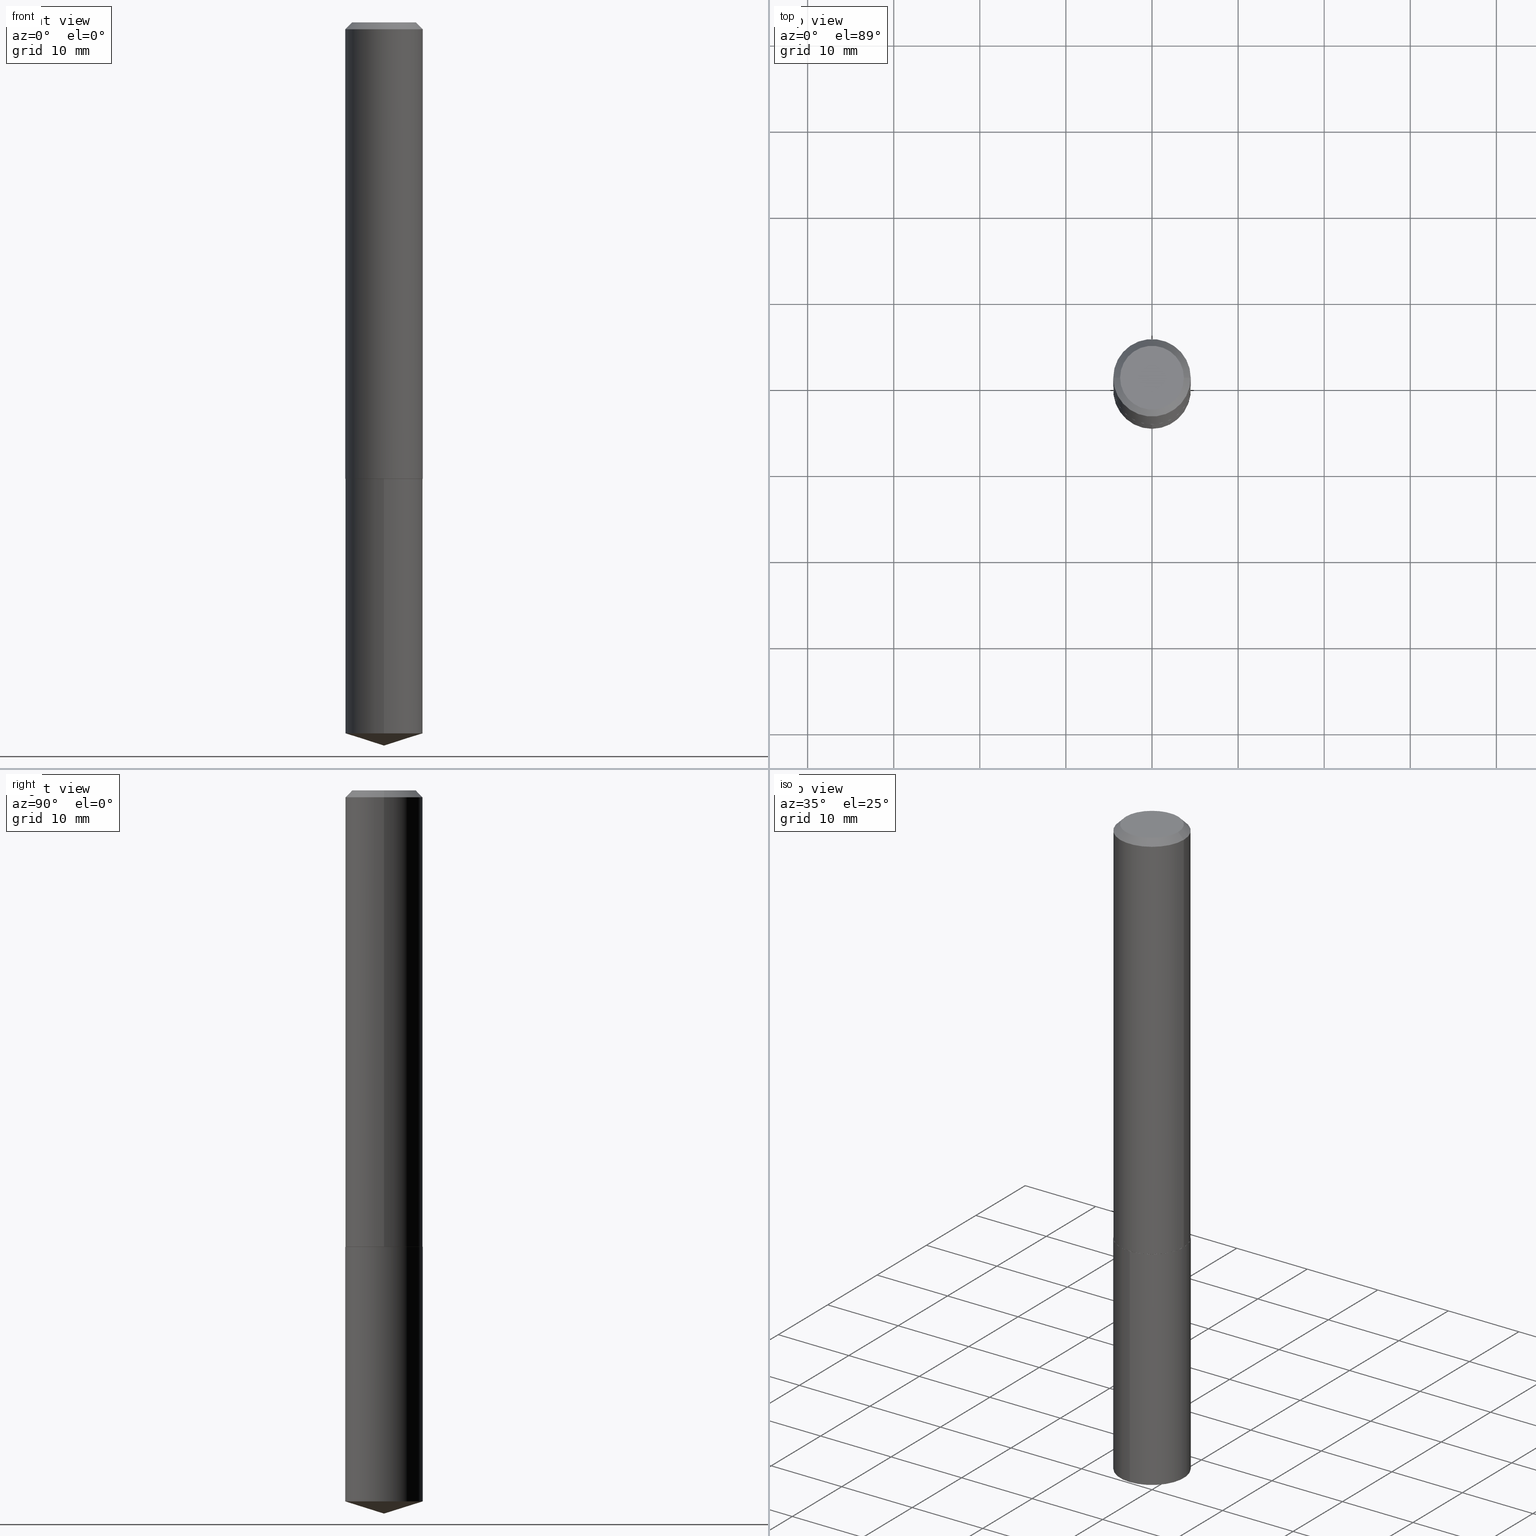
[diagram: canonical four-view strip — front | top / right | iso, engineering-drawing reading convention]
A machine part, canonical four-view strip (front | top / right | iso — engineering-drawing reading convention). The complete STEP part file that produces these views, byte-faithful:
ISO-10303-21;
HEADER;
FILE_DESCRIPTION (( 'STEP AP203' ),
    '1' );
FILE_NAME ('62151.STEP',
    '2024-04-23T06:48:32',
    ( '' ),
    ( '' ),
    'SwSTEP 2.0',
    'SolidWorks 2023',
    '' );
FILE_SCHEMA (( 'CONFIG_CONTROL_DESIGN' ));
ENDSEC;

DATA;
#1 = DIRECTION ( 'NONE',  ( 2.438088387897960049E-29, -3.491481338843145188E-15, -1.000000000000000000 ) ) ;
#2 = ORIENTED_EDGE ( 'NONE', *, *, #185, .T. ) ;
#3 = ADVANCED_FACE ( 'NONE', ( #334 ), #212, .T. ) ;
#4 = DIRECTION ( 'NONE',  ( -2.445468806185136597E-29, 3.491481338843145583E-15, 1.000000000000000000 ) ) ;
#5 = VECTOR ( 'NONE', #210, 39.37007874015748854 ) ;
#6 = PRODUCT_DEFINITION_SHAPE ( 'NONE', 'NONE',  #368 ) ;
#7 = CYLINDRICAL_SURFACE ( 'NONE', #348, 0.1771500000000000019 ) ;
#8 = DIRECTION ( 'NONE',  ( -6.982962677686265922E-15, -1.000000000000000000, 3.084220145260246224E-15 ) ) ;
#9 = LINE ( 'NONE', #312, #281 ) ;
#10 = AXIS2_PLACEMENT_3D ( 'NONE', #277, #369, #184 ) ;
#11 = CARTESIAN_POINT ( 'NONE',  ( 1.258726456399068374E-15, 0.1771499999999927299, -2.086600000000001121 ) ) ;
#12 = ORIENTED_EDGE ( 'NONE', *, *, #304, .T. ) ;
#13 = ORIENTED_EDGE ( 'NONE', *, *, #295, .F. ) ;
#14 = LINE ( 'NONE', #128, #127 ) ;
#15 = AXIS2_PLACEMENT_3D ( 'NONE', #148, #151, #275 ) ;
#16 = ORIENTED_EDGE ( 'NONE', *, *, #316, .F. ) ;
#17 = APPROVAL ( #200, 'UNSPECIFIED' ) ;
#18 = DIRECTION ( 'NONE',  ( 1.000000000000000000, -6.982962677686266711E-15, 0.000000000000000000 ) ) ;
#19 = DIRECTION ( 'NONE',  ( -2.445468806185136597E-29, 3.491481338843145583E-15, 1.000000000000000000 ) ) ;
#20 = EDGE_LOOP ( 'NONE', ( #158, #99, #156, #253 ) ) ;
#21 = DATE_AND_TIME ( #26, #86 ) ;
#22 = AXIS2_PLACEMENT_3D ( 'NONE', #49, #98, #292 ) ;
#23 = FACE_OUTER_BOUND ( 'NONE', #93, .T. ) ;
#24 = EDGE_CURVE ( 'NONE', #387, #286, #198, .T. ) ;
#25 = MANIFOLD_SOLID_BREP ( 'Body-Move/Copy2[1]', #203 ) ;
#26 = CALENDAR_DATE ( 2024, 23, 4 ) ;
#27 = CARTESIAN_POINT ( 'NONE',  ( -2.949913012720688878E-47, 4.211693974208522336E-33, 1.206277097160143859E-18 ) ) ;
#28 = ORIENTED_EDGE ( 'NONE', *, *, #182, .T. ) ;
#29 = COORDINATED_UNIVERSAL_TIME_OFFSET ( 5, 0, .BEHIND. ) ;
#30 = DIRECTION ( 'NONE',  ( 2.445468806185136597E-29, -3.491481338843145583E-15, -1.000000000000000000 ) ) ;
#31 = ORIENTED_EDGE ( 'NONE', *, *, #244, .T. ) ;
#32 = CARTESIAN_POINT ( 'NONE',  ( 5.102715210985907397E-29, -7.285324961630108994E-15, -2.086600000000000676 ) ) ;
#33 = DIRECTION ( 'NONE',  ( -2.444942858903587164E-29, 3.492234525285384557E-15, 1.000000000000000000 ) ) ;
#34 = EDGE_CURVE ( 'NONE', #194, #387, #382, .T. ) ;
#35 = AXIS2_PLACEMENT_3D ( 'NONE', #359, #360, #269 ) ;
#36 = DIRECTION ( 'NONE',  ( -2.445468806185136597E-29, 3.491481338843145583E-15, 1.000000000000000000 ) ) ;
#37 = CARTESIAN_POINT ( 'NONE',  ( 0.1766500000000002790, -8.518865318643389958E-15, -2.086600000000000232 ) ) ;
#38 = CARTESIAN_POINT ( 'NONE',  ( 0.000000000000000000, 0.000000000000000000, 0.000000000000000000 ) ) ;
#39 = VECTOR ( 'NONE', #337, 39.37007874015748854 ) ;
#40 = CARTESIAN_POINT ( 'NONE',  ( 0.000000000000000000, 0.000000000000000000, 0.000000000000000000 ) ) ;
#41 = ORIENTED_EDGE ( 'NONE', *, *, #185, .F. ) ;
#42 = MECHANICAL_CONTEXT ( 'NONE', #162, 'mechanical' ) ;
#43 = CARTESIAN_POINT ( 'NONE',  ( 5.102715210985907397E-29, -7.285324961630108994E-15, -2.086600000000000676 ) ) ;
#44 = ORIENTED_EDGE ( 'NONE', *, *, #45, .F. ) ;
#45 = EDGE_CURVE ( 'NONE', #165, #354, #181, .T. ) ;
#46 = CC_DESIGN_SECURITY_CLASSIFICATION ( #161, ( #279 ) ) ;
#47 = FACE_OUTER_BOUND ( 'NONE', #222, .T. ) ;
#48 = ORIENTED_EDGE ( 'NONE', *, *, #211, .F. ) ;
#49 = CARTESIAN_POINT ( 'NONE',  ( 7.950205245703951750E-29, -1.135253781015769415E-14, -3.251244819550088483 ) ) ;
#50 = ORIENTED_EDGE ( 'NONE', *, *, #34, .T. ) ;
#51 = ADVANCED_FACE ( 'NONE', ( #56 ), #202, .T. ) ;
#52 = APPROVAL_DATE_TIME ( #325, #17 ) ;
#53 = EDGE_LOOP ( 'NONE', ( #110, #381, #144, #196 ) ) ;
#54 = CIRCLE ( 'NONE', #10, 0.1771500000000000019 ) ;
#55 = SECURITY_CLASSIFICATION_LEVEL ( 'unclassified' ) ;
#56 = FACE_OUTER_BOUND ( 'NONE', #53, .T. ) ;
#57 = VERTEX_POINT ( 'NONE', #208 ) ;
#58 = PLANE ( 'NONE',  #72 ) ;
#59 = PRODUCT_RELATED_PRODUCT_CATEGORY ( 'detail', '', ( #266 ) ) ;
#60 = APPROVAL_STATUS ( 'not_yet_approved' ) ;
#61 = DIRECTION ( 'NONE',  ( -2.445468806185136597E-29, 3.491481338843145583E-15, 1.000000000000000000 ) ) ;
#62 = CIRCLE ( 'NONE', #168, 0.1766500000000002790 ) ;
#63 = DIRECTION ( 'NONE',  ( -2.445468806185136597E-29, 3.491481338843145583E-15, 1.000000000000000000 ) ) ;
#64 = CARTESIAN_POINT ( 'NONE',  ( 5.101492476582815716E-29, -7.283579220960688279E-15, -2.086100000000000954 ) ) ;
#65 = DIRECTION ( 'NONE',  ( -2.445468806185136597E-29, 3.491481338843145583E-15, 1.000000000000000000 ) ) ;
#66 = CC_DESIGN_APPROVAL ( #249, ( #279 ) ) ;
#67 = CARTESIAN_POINT ( 'NONE',  ( 1.258726456399096773E-15, 0.1771499999999885666, -3.251244819550088927 ) ) ;
#68 = DIRECTION ( 'NONE',  ( -2.445468806185136877E-29, 3.491481338843145188E-15, 1.000000000000000000 ) ) ;
#69 = CC_DESIGN_PERSON_AND_ORGANIZATION_ASSIGNMENT ( #197, #104, ( #368 ) ) ;
#70 = DIRECTION ( 'NONE',  ( -2.444942858903587164E-29, 3.492234525285384557E-15, 1.000000000000000000 ) ) ;
#71 = CIRCLE ( 'NONE', #296, 0.1771500000000000019 ) ;
#72 = AXIS2_PLACEMENT_3D ( 'NONE', #111, #1, #240 ) ;
#73 = ADVANCED_FACE ( 'NONE', ( #332 ), #58, .F. ) ;
#74 = ORIENTED_EDGE ( 'NONE', *, *, #287, .F. ) ;
#75 = ORIENTED_EDGE ( 'NONE', *, *, #45, .T. ) ;
#76 = AXIS2_PLACEMENT_3D ( 'NONE', #241, #236, #172 ) ;
#77 = ORIENTED_EDGE ( 'NONE', *, *, #24, .T. ) ;
#78 = ORIENTED_EDGE ( 'NONE', *, *, #267, .T. ) ;
#79 = DIRECTION ( 'NONE',  ( 1.000000000000000000, -6.982962677686263555E-15, 0.000000000000000000 ) ) ;
#80 = COORDINATED_UNIVERSAL_TIME_OFFSET ( 5, 0, .BEHIND. ) ;
#81 = CIRCLE ( 'NONE', #135, 0.1771500000000002240 ) ;
#82 = DIRECTION ( 'NONE',  ( -6.982962677686266711E-15, -1.000000000000000000, 3.500519750498737170E-15 ) ) ;
#83 = CARTESIAN_POINT ( 'NONE',  ( 7.642090019328603538E-31, -1.091087918388490390E-16, -0.03125000000000021511 ) ) ;
#84 = EDGE_CURVE ( 'NONE', #259, #354, #263, .T. ) ;
#85 = DIRECTION ( 'NONE',  ( -0.7071067811867647324, 7.493145998871139866E-15, 0.7071067811863303021 ) ) ;
#86 = LOCAL_TIME ( 2, 48, 32.00000000000000000, #108 ) ;
#87 = CARTESIAN_POINT ( 'NONE',  ( 5.102715210985907397E-29, -7.285324961630108994E-15, -2.086600000000000232 ) ) ;
#88 = VECTOR ( 'NONE', #89, 39.37007874015748143 ) ;
#89 = DIRECTION ( 'NONE',  ( -2.444942858903587164E-29, 3.492234525285384162E-15, 1.000000000000000000 ) ) ;
#90 = DIRECTION ( 'NONE',  ( 1.000000000000000000, -6.982962677686269866E-15, 0.000000000000000000 ) ) ;
#91 = CYLINDRICAL_SURFACE ( 'NONE', #310, 0.1771500000000001129 ) ;
#92 = CARTESIAN_POINT ( 'NONE',  ( -0.1771500000000002240, -6.024852764561670589E-15, -2.086100000000000954 ) ) ;
#93 = EDGE_LOOP ( 'NONE', ( #327, #206 ) ) ;
#94 = CLOSED_SHELL ( 'NONE', ( #51, #255, #342, #171, #346, #132, #356, #73 ) ) ;
#95 = EDGE_CURVE ( 'NONE', #57, #317, #113, .T. ) ;
#96 = CARTESIAN_POINT ( 'NONE',  ( -0.1771500000000000019, 1.127923046513273096E-15, -0.03125000000000021511 ) ) ;
#97 = ORIENTED_EDGE ( 'NONE', *, *, #211, .T. ) ;
#98 = DIRECTION ( 'NONE',  ( -2.444942858903587164E-29, 3.492234525285384557E-15, 1.000000000000000000 ) ) ;
#99 = ORIENTED_EDGE ( 'NONE', *, *, #295, .T. ) ;
#100 = LOCAL_TIME ( 2, 48, 32.00000000000000000, #80 ) ;
#101 = CONICAL_SURFACE ( 'NONE', #336, 0.1771500000000000019, 0.7853981633974450594 ) ;
#102 = ORIENTED_EDGE ( 'NONE', *, *, #244, .F. ) ;
#103 = ADVANCED_FACE ( 'NONE', ( #23 ), #137, .F. ) ;
#104 = PERSON_AND_ORGANIZATION_ROLE ( 'creator' ) ;
#105 = EDGE_LOOP ( 'NONE', ( #299, #31, #379 ) ) ;
#106 = PERSON_AND_ORGANIZATION_ROLE ( 'classification_officer' ) ;
#107 = CARTESIAN_POINT ( 'NONE',  ( 5.101492476582815716E-29, -7.283579220960688279E-15, -2.086100000000000954 ) ) ;
#108 = COORDINATED_UNIVERSAL_TIME_OFFSET ( 5, 0, .BEHIND. ) ;
#109 = ORIENTED_EDGE ( 'NONE', *, *, #215, .T. ) ;
#110 = ORIENTED_EDGE ( 'NONE', *, *, #95, .F. ) ;
#111 = CARTESIAN_POINT ( 'NONE',  ( -1.474956506360344439E-47, 2.105846987104261168E-33, 6.031385485800719294E-19 ) ) ;
#112 = EDGE_CURVE ( 'NONE', #190, #286, #81, .T. ) ;
#113 = CIRCLE ( 'NONE', #126, 0.1459000000000000019 ) ;
#114 = PLANE ( 'NONE',  #328 ) ;
#115 = DIRECTION ( 'NONE',  ( 1.000000000000000000, -6.982962677686265922E-15, 4.876176775795935793E-29 ) ) ;
#116 = FACE_OUTER_BOUND ( 'NONE', #130, .T. ) ;
#117 = CYLINDRICAL_SURFACE ( 'NONE', #376, 0.1771500000000001129 ) ;
#118 = LOCAL_TIME ( 2, 48, 32.00000000000000000, #29 ) ;
#119 = AXIS2_PLACEMENT_3D ( 'NONE', #378, #164, #285 ) ;
#120 = DIRECTION ( 'NONE',  ( -2.438088387897960049E-29, 3.491481338843145188E-15, 1.000000000000000000 ) ) ;
#121 = UNCERTAINTY_MEASURE_WITH_UNIT (LENGTH_MEASURE( 1.000000000000000082E-05 ), #129, 'distance_accuracy_value', 'NONE');
#122 = CARTESIAN_POINT ( 'NONE',  ( 5.101492476582815716E-29, -7.283579220960688279E-15, -2.086100000000000954 ) ) ;
#123 = ADVANCED_FACE ( 'NONE', ( #201 ), #7, .T. ) ;
#124 = DIRECTION ( 'NONE',  ( -1.000000000000000000, 6.982962677686266711E-15, 0.000000000000000000 ) ) ;
#125 = ORIENTED_EDGE ( 'NONE', *, *, #34, .F. ) ;
#126 = AXIS2_PLACEMENT_3D ( 'NONE', #27, #61, #297 ) ;
#127 = VECTOR ( 'NONE', #315, 39.37007874015748143 ) ;
#128 = CARTESIAN_POINT ( 'NONE',  ( -0.1771500000000001129, 1.258726456399018282E-15, -8.713893512386570931E-30 ) ) ;
#129 =( CONVERSION_BASED_UNIT ( 'INCH', #375 ) LENGTH_UNIT ( ) NAMED_UNIT ( #306 ) );
#130 = EDGE_LOOP ( 'NONE', ( #125, #48 ) ) ;
#131 = DATE_AND_TIME ( #357, #118 ) ;
#132 = ADVANCED_FACE ( 'NONE', ( #305 ), #91, .T. ) ;
#133 = EDGE_LOOP ( 'NONE', ( #353, #301, #2, #16 ) ) ;
#134 = CC_DESIGN_APPROVAL ( #163, ( #161 ) ) ;
#135 = AXIS2_PLACEMENT_3D ( 'NONE', #107, #139, #79 ) ;
#136 = PERSON_AND_ORGANIZATION_ROLE ( 'design_supplier' ) ;
#137 = PLANE ( 'NONE',  #254 ) ;
#138 = PERSON_AND_ORGANIZATION_ROLE ( 'design_owner' ) ;
#139 = DIRECTION ( 'NONE',  ( -2.445468806185136597E-29, 3.491481338843145583E-15, 1.000000000000000000 ) ) ;
#140 = EDGE_CURVE ( 'NONE', #57, #290, #183, .T. ) ;
#141 = DATE_TIME_ROLE ( 'classification_date' ) ;
#142 = VERTEX_POINT ( 'NONE', #216 ) ;
#143 = DATE_AND_TIME ( #333, #187 ) ;
#144 = ORIENTED_EDGE ( 'NONE', *, *, #287, .T. ) ;
#145 = ORIENTED_EDGE ( 'NONE', *, *, #24, .F. ) ;
#146 = PERSON ( 'UNSPECIFIED', 'UNSPECIFIED', 'UNSPECIFIED', ('UNSPECIFIED'), ('UNSPECIFIED'), ('UNSPECIFIED') ) ;
#147 = DIRECTION ( 'NONE',  ( -6.982962677686265922E-15, -1.000000000000000000, 3.084220145260246224E-15 ) ) ;
#148 = CARTESIAN_POINT ( 'NONE',  ( -8.817082489994223914E-28, 1.259419510398411612E-13, 36.06297874015748306 ) ) ;
#149 = DIRECTION ( 'NONE',  ( 1.000000000000000000, -6.982962677686263555E-15, 0.000000000000000000 ) ) ;
#150 = CC_DESIGN_DATE_AND_TIME_ASSIGNMENT ( #131, #141, ( #161 ) ) ;
#151 = DIRECTION ( 'NONE',  ( -2.444942858903587164E-29, 3.492234525285384557E-15, 1.000000000000000000 ) ) ;
#152 = CARTESIAN_POINT ( 'NONE',  ( -2.949913012720688878E-47, 4.211693974208522336E-33, 1.206277097160143859E-18 ) ) ;
#153 = CIRCLE ( 'NONE', #383, 0.1771500000000000019 ) ;
#154 = DIRECTION ( 'NONE',  ( 0.000000000000000000, 0.000000000000000000, 1.000000000000000000 ) ) ;
#155 = EDGE_CURVE ( 'NONE', #321, #142, #274, .T. ) ;
#156 = ORIENTED_EDGE ( 'NONE', *, *, #372, .F. ) ;
#157 = CYLINDRICAL_SURFACE ( 'NONE', #119, 0.1771500000000000019 ) ;
#158 = ORIENTED_EDGE ( 'NONE', *, *, #331, .T. ) ;
#159 = PERSON_AND_ORGANIZATION ( #146, #358 ) ;
#160 = ORIENTED_EDGE ( 'NONE', *, *, #155, .F. ) ;
#161 = SECURITY_CLASSIFICATION ( '', '', #55 ) ;
#162 = APPLICATION_CONTEXT ( 'configuration controlled 3d designs of mechanical parts and assemblies' ) ;
#163 = APPROVAL ( #233, 'UNSPECIFIED' ) ;
#164 = DIRECTION ( 'NONE',  ( -2.444942858903587164E-29, 3.492234525285384557E-15, 1.000000000000000000 ) ) ;
#165 = VERTEX_POINT ( 'NONE', #67 ) ;
#166 = PERSON_AND_ORGANIZATION ( #146, #358 ) ;
#167 = EDGE_LOOP ( 'NONE', ( #102, #176, #44 ) ) ;
#168 = AXIS2_PLACEMENT_3D ( 'NONE', #87, #245, #90 ) ;
#169 = APPLICATION_PROTOCOL_DEFINITION ( 'international standard', 'config_control_design', 1994, #276 ) ;
#170 = VERTEX_POINT ( 'NONE', #339 ) ;
#171 = ADVANCED_FACE ( 'NONE', ( #116 ), #114, .F. ) ;
#172 = DIRECTION ( 'NONE',  ( 1.000000000000000000, -6.982962677686269866E-15, 0.000000000000000000 ) ) ;
#173 = PERSON_AND_ORGANIZATION ( #146, #358 ) ;
#174 = CARTESIAN_POINT ( 'NONE',  ( -8.817082489994223914E-28, 1.259419510398411612E-13, 36.06297874015748306 ) ) ;
#175 = AXIS2_PLACEMENT_3D ( 'NONE', #83, #30, #234 ) ;
#176 = ORIENTED_EDGE ( 'NONE', *, *, #84, .T. ) ;
#177 = CC_DESIGN_PERSON_AND_ORGANIZATION_ASSIGNMENT ( #159, #138, ( #266 ) ) ;
#178 = CARTESIAN_POINT ( 'NONE',  ( 8.085670528680053802E-29, -1.154916879857129726E-14, -3.307100000000000151 ) ) ;
#179 = CARTESIAN_POINT ( 'NONE',  ( 5.102715210985907397E-29, -7.285324961630108994E-15, -2.086600000000000676 ) ) ;
#180 = DIRECTION ( 'NONE',  ( 1.000000000000000000, -6.982962677686266711E-15, 4.876233736924995224E-29 ) ) ;
#181 = CIRCLE ( 'NONE', #35, 0.1771500000000000019 ) ;
#182 = EDGE_CURVE ( 'NONE', #194, #190, #366, .T. ) ;
#183 = LINE ( 'NONE', #341, #223 ) ;
#184 = DIRECTION ( 'NONE',  ( 1.000000000000000000, -6.982962677686266711E-15, 0.000000000000000000 ) ) ;
#185 = EDGE_CURVE ( 'NONE', #190, #290, #9, .T. ) ;
#186 = CARTESIAN_POINT ( 'NONE',  ( 7.642090019328603538E-31, -1.091087918388490390E-16, -0.03125000000000021511 ) ) ;
#187 = LOCAL_TIME ( 2, 48, 32.00000000000000000, #388 ) ;
#188 = AXIS2_PLACEMENT_3D ( 'NONE', #179, #243, #8 ) ;
#189 = APPLICATION_PROTOCOL_DEFINITION ( 'international standard', 'config_control_design', 1994, #162 ) ;
#190 = VERTEX_POINT ( 'NONE', #314 ) ;
#191 = DESIGN_CONTEXT ( 'detailed design', #276, 'design' ) ;
#192 = LINE ( 'NONE', #96, #308 ) ;
#193 = CARTESIAN_POINT ( 'NONE',  ( 1.258726456399097168E-15, 0.1771499999999927299, -2.086600000000001121 ) ) ;
#194 = VERTEX_POINT ( 'NONE', #37 ) ;
#195 = VECTOR ( 'NONE', #85, 39.37007874015748143 ) ;
#196 = ORIENTED_EDGE ( 'NONE', *, *, #364, .F. ) ;
#197 = PERSON_AND_ORGANIZATION ( #146, #358 ) ;
#198 = LINE ( 'NONE', #324, #195 ) ;
#199 = ADVANCED_FACE ( 'NONE', ( #213 ), #302, .T. ) ;
#200 = APPROVAL_STATUS ( 'not_yet_approved' ) ;
#201 = FACE_OUTER_BOUND ( 'NONE', #20, .T. ) ;
#202 = CONICAL_SURFACE ( 'NONE', #175, 0.1771500000000000019, 0.7853981633974450594 ) ;
#203 = CLOSED_SHELL ( 'NONE', ( #123, #199, #3, #313, #103 ) ) ;
#204 = AXIS2_PLACEMENT_3D ( 'NONE', #64, #36, #149 ) ;
#205 = PERSON_AND_ORGANIZATION ( #146, #358 ) ;
#206 = ORIENTED_EDGE ( 'NONE', *, *, #155, .T. ) ;
#207 = APPROVAL_ROLE ( '' ) ;
#208 = CARTESIAN_POINT ( 'NONE',  ( 0.1459000000000000019, -1.162696335009471270E-15, 1.206277097167771312E-18 ) ) ;
#209 = CALENDAR_DATE ( 2024, 23, 4 ) ;
#210 = DIRECTION ( 'NONE',  ( -6.659769872151625778E-15, -0.9537169507482258224, 0.3007057995042763388 ) ) ;
#211 = EDGE_CURVE ( 'NONE', #387, #194, #62, .T. ) ;
#212 = CONICAL_SURFACE ( 'NONE', #309, 124.8659371009138965, 1.265363707695889017 ) ;
#213 = FACE_OUTER_BOUND ( 'NONE', #105, .T. ) ;
#214 = CARTESIAN_POINT ( 'NONE',  ( 8.087884658410187367E-29, -1.154602560091054387E-14, -3.307100000000000151 ) ) ;
#215 = EDGE_CURVE ( 'NONE', #317, #57, #220, .T. ) ;
#216 = CARTESIAN_POINT ( 'NONE',  ( -1.237031838352071118E-15, -0.1771500000000073016, -2.086600000000000232 ) ) ;
#217 = DIRECTION ( 'NONE',  ( -2.444942858903587164E-29, 3.492234525285384162E-15, 1.000000000000000000 ) ) ;
#218 = LINE ( 'NONE', #214, #39 ) ;
#219 = DIRECTION ( 'NONE',  ( 1.000000000000000000, -6.982962677686263555E-15, 0.000000000000000000 ) ) ;
#220 = CIRCLE ( 'NONE', #242, 0.1459000000000000019 ) ;
#221 = APPROVAL_PERSON_ORGANIZATION ( #166, #17, #323 ) ;
#222 = EDGE_LOOP ( 'NONE', ( #284, #298, #228, #265 ) ) ;
#223 = VECTOR ( 'NONE', #247, 39.37007874015748143 ) ;
#224 = DIRECTION ( 'NONE',  ( -6.982962677686265922E-15, -1.000000000000000000, 3.084220145260246224E-15 ) ) ;
#225 = ORIENTED_EDGE ( 'NONE', *, *, #95, .T. ) ;
#226 = FACE_OUTER_BOUND ( 'NONE', #270, .T. ) ;
#227 = CC_DESIGN_PERSON_AND_ORGANIZATION_ASSIGNMENT ( #264, #239, ( #279 ) ) ;
#228 = ORIENTED_EDGE ( 'NONE', *, *, #364, .T. ) ;
#229 = APPROVAL_PERSON_ORGANIZATION ( #205, #249, #207 ) ;
#230 = AXIS2_PLACEMENT_3D ( 'NONE', #319, #19, #351 ) ;
#231 = APPROVAL_ROLE ( '' ) ;
#232 = ORIENTED_EDGE ( 'NONE', *, *, #182, .F. ) ;
#233 = APPROVAL_STATUS ( 'not_yet_approved' ) ;
#234 = DIRECTION ( 'NONE',  ( -1.000000000000000000, 6.982962677686266711E-15, 0.000000000000000000 ) ) ;
#235 = SHAPE_DEFINITION_REPRESENTATION ( #6, #377 ) ;
#236 = DIRECTION ( 'NONE',  ( -2.445468806185136597E-29, 3.491481338843145583E-15, 1.000000000000000000 ) ) ;
#237 =( GEOMETRIC_REPRESENTATION_CONTEXT ( 3 ) GLOBAL_UNCERTAINTY_ASSIGNED_CONTEXT ( ( #121 ) ) GLOBAL_UNIT_ASSIGNED_CONTEXT ( ( #129, #257, #282 ) ) REPRESENTATION_CONTEXT ( 'NONE', 'WORKASPACE' ) );
#238 = DIRECTION ( 'NONE',  ( -2.444942858903587164E-29, 3.492234525285384557E-15, 1.000000000000000000 ) ) ;
#239 = PERSON_AND_ORGANIZATION_ROLE ( 'creator' ) ;
#240 = DIRECTION ( 'NONE',  ( -1.000000000000000000, 6.982962677686265922E-15, -4.876176775795935793E-29 ) ) ;
#241 = CARTESIAN_POINT ( 'NONE',  ( 5.102715210985907397E-29, -7.285324961630108994E-15, -2.086600000000000232 ) ) ;
#242 = AXIS2_PLACEMENT_3D ( 'NONE', #152, #65, #180 ) ;
#243 = DIRECTION ( 'NONE',  ( -2.444942858903587164E-29, 3.492234525285384557E-15, 1.000000000000000000 ) ) ;
#244 = EDGE_CURVE ( 'NONE', #259, #165, #218, .T. ) ;
#245 = DIRECTION ( 'NONE',  ( -2.445468806185136597E-29, 3.491481338843145583E-15, 1.000000000000000000 ) ) ;
#246 = CARTESIAN_POINT ( 'NONE',  ( 0.1771500000000000019, -1.346140630190971297E-15, -0.03125000000000021511 ) ) ;
#247 = DIRECTION ( 'NONE',  ( 0.7071067811865452413, -7.319954787623248157E-15, -0.7071067811865497932 ) ) ;
#248 =( LENGTH_UNIT ( ) NAMED_UNIT ( * ) SI_UNIT ( $, .METRE. ) );
#249 = APPROVAL ( #60, 'UNSPECIFIED' ) ;
#250 = DIRECTION ( 'NONE',  ( 1.000000000000000000, 0.000000000000000000, 0.000000000000000000 ) ) ;
#251 = VECTOR ( 'NONE', #217, 39.37007874015748143 ) ;
#252 = FACE_OUTER_BOUND ( 'NONE', #320, .T. ) ;
#253 = ORIENTED_EDGE ( 'NONE', *, *, #267, .F. ) ;
#254 = AXIS2_PLACEMENT_3D ( 'NONE', #303, #261, #355 ) ;
#255 = ADVANCED_FACE ( 'NONE', ( #311 ), #117, .T. ) ;
#256 = DIRECTION ( 'NONE',  ( -2.445468806185136597E-29, 3.491481338843145583E-15, 1.000000000000000000 ) ) ;
#257 =( NAMED_UNIT ( * ) PLANE_ANGLE_UNIT ( ) SI_UNIT ( $, .RADIAN. ) );
#258 = ORIENTED_EDGE ( 'NONE', *, *, #112, .T. ) ;
#259 = VERTEX_POINT ( 'NONE', #178 ) ;
#260 = APPROVAL_DATE_TIME ( #143, #163 ) ;
#261 = DIRECTION ( 'NONE',  ( 2.444942858903587164E-29, -3.492234525285384162E-15, -1.000000000000000000 ) ) ;
#262 = DATE_TIME_ROLE ( 'creation_date' ) ;
#263 = LINE ( 'NONE', #362, #5 ) ;
#264 = PERSON_AND_ORGANIZATION ( #146, #358 ) ;
#265 = ORIENTED_EDGE ( 'NONE', *, *, #316, .T. ) ;
#266 = PRODUCT ( '62151', '62151', '', ( #42 ) ) ;
#267 = EDGE_CURVE ( 'NONE', #354, #142, #343, .T. ) ;
#268 = COORDINATED_UNIVERSAL_TIME_OFFSET ( 5, 0, .BEHIND. ) ;
#269 = DIRECTION ( 'NONE',  ( -6.982962677686265922E-15, -1.000000000000000000, 3.084220145260246224E-15 ) ) ;
#270 = EDGE_LOOP ( 'NONE', ( #145, #97, #28, #293 ) ) ;
#271 = CARTESIAN_POINT ( 'NONE',  ( 0.000000000000000000, 0.000000000000000000, 0.000000000000000000 ) ) ;
#272 = EDGE_CURVE ( 'NONE', #286, #190, #352, .T. ) ;
#273 = CIRCLE ( 'NONE', #22, 0.1771500000000000019 ) ;
#274 = CIRCLE ( 'NONE', #188, 0.1771500000000000019 ) ;
#275 = DIRECTION ( 'NONE',  ( -6.982962677686266711E-15, -1.000000000000000000, 3.500519750498737170E-15 ) ) ;
#276 = APPLICATION_CONTEXT ( 'configuration controlled 3d designs of mechanical parts and assemblies' ) ;
#277 = CARTESIAN_POINT ( 'NONE',  ( 7.642090019328603538E-31, -1.091087918388490390E-16, -0.03125000000000021511 ) ) ;
#278 = DIRECTION ( 'NONE',  ( 1.000000000000000000, -6.982962677686266711E-15, 4.876176775795935793E-29 ) ) ;
#279 = PRODUCT_DEFINITION_FORMATION_WITH_SPECIFIED_SOURCE ( 'ANY', '', #266, .NOT_KNOWN. ) ;
#280 = LINE ( 'NONE', #11, #251 ) ;
#281 = VECTOR ( 'NONE', #68, 39.37007874015748143 ) ;
#282 =( NAMED_UNIT ( * ) SI_UNIT ( $, .STERADIAN. ) SOLID_ANGLE_UNIT ( ) );
#283 = MANIFOLD_SOLID_BREP ( 'Body-Move/Copy2[2]', #94 ) ;
#284 = ORIENTED_EDGE ( 'NONE', *, *, #140, .F. ) ;
#285 = DIRECTION ( 'NONE',  ( -6.982962677686265922E-15, -1.000000000000000000, 3.084220145260246224E-15 ) ) ;
#286 = VERTEX_POINT ( 'NONE', #92 ) ;
#287 = EDGE_CURVE ( 'NONE', #290, #170, #54, .T. ) ;
#288 = LOCAL_TIME ( 2, 48, 32.00000000000000000, #268 ) ;
#289 = CARTESIAN_POINT ( 'NONE',  ( -0.1459000000000000019, 1.073368650593849729E-15, 1.206277097152828214E-18 ) ) ;
#290 = VERTEX_POINT ( 'NONE', #246 ) ;
#291 = CARTESIAN_POINT ( 'NONE',  ( -0.1766500000000002790, -6.027501991735780213E-15, -2.086600000000000232 ) ) ;
#292 = DIRECTION ( 'NONE',  ( -6.982962677686265922E-15, -1.000000000000000000, 3.084220145260246224E-15 ) ) ;
#293 = ORIENTED_EDGE ( 'NONE', *, *, #272, .F. ) ;
#294 = CALENDAR_DATE ( 2024, 23, 4 ) ;
#295 = EDGE_CURVE ( 'NONE', #165, #321, #280, .T. ) ;
#296 = AXIS2_PLACEMENT_3D ( 'NONE', #186, #371, #18 ) ;
#297 = DIRECTION ( 'NONE',  ( 1.000000000000000000, -6.982962677686266711E-15, 4.876233736924995224E-29 ) ) ;
#298 = ORIENTED_EDGE ( 'NONE', *, *, #215, .F. ) ;
#299 = ORIENTED_EDGE ( 'NONE', *, *, #84, .F. ) ;
#300 = CC_DESIGN_DATE_AND_TIME_ASSIGNMENT ( #21, #262, ( #368 ) ) ;
#301 = ORIENTED_EDGE ( 'NONE', *, *, #272, .T. ) ;
#302 = CONICAL_SURFACE ( 'NONE', #15, 124.8659371009138965, 1.265363707695889017 ) ;
#303 = CARTESIAN_POINT ( 'NONE',  ( 5.102715210985907397E-29, -7.285324961630108994E-15, -2.086600000000000676 ) ) ;
#304 = EDGE_CURVE ( 'NONE', #286, #170, #14, .T. ) ;
#305 = FACE_OUTER_BOUND ( 'NONE', #133, .T. ) ;
#306 = DIMENSIONAL_EXPONENTS ( 1.000000000000000000, 0.000000000000000000, 0.000000000000000000, 0.000000000000000000, 0.000000000000000000, 0.000000000000000000, 0.000000000000000000 ) ;
#307 = CARTESIAN_POINT ( 'NONE',  ( 5.102715210985907397E-29, -7.285324961630108994E-15, -2.086600000000000676 ) ) ;
#308 = VECTOR ( 'NONE', #318, 39.37007874015748143 ) ;
#309 = AXIS2_PLACEMENT_3D ( 'NONE', #174, #238, #82 ) ;
#310 = AXIS2_PLACEMENT_3D ( 'NONE', #38, #4, #278 ) ;
#311 = FACE_OUTER_BOUND ( 'NONE', #390, .T. ) ;
#312 = CARTESIAN_POINT ( 'NONE',  ( 0.1771500000000001129, -1.237031838352122986E-15, 8.638147158322505565E-30 ) ) ;
#313 = ADVANCED_FACE ( 'NONE', ( #252 ), #157, .T. ) ;
#314 = CARTESIAN_POINT ( 'NONE',  ( 0.1771500000000002240, -8.520611059312812251E-15, -2.086100000000000954 ) ) ;
#315 = DIRECTION ( 'NONE',  ( -2.445468806185136877E-29, 3.491481338843145188E-15, 1.000000000000000000 ) ) ;
#316 = EDGE_CURVE ( 'NONE', #170, #290, #71, .T. ) ;
#317 = VERTEX_POINT ( 'NONE', #289 ) ;
#318 = DIRECTION ( 'NONE',  ( -0.7071067811865452413, 2.468850131082233000E-15, -0.7071067811865497932 ) ) ;
#319 = CARTESIAN_POINT ( 'NONE',  ( 5.101492476582815716E-29, -7.283579220960688279E-15, -2.086100000000000954 ) ) ;
#320 = EDGE_LOOP ( 'NONE', ( #13, #75, #78, #160 ) ) ;
#321 = VERTEX_POINT ( 'NONE', #193 ) ;
#322 = CC_DESIGN_PERSON_AND_ORGANIZATION_ASSIGNMENT ( #361, #136, ( #279 ) ) ;
#323 = APPROVAL_ROLE ( '' ) ;
#324 = CARTESIAN_POINT ( 'NONE',  ( -0.1771500000000002240, -6.024852764561670589E-15, -2.086100000000000954 ) ) ;
#325 = DATE_AND_TIME ( #294, #288 ) ;
#326 = CONICAL_SURFACE ( 'NONE', #230, 0.1771500000000002240, 0.7853981633977554777 ) ;
#327 = ORIENTED_EDGE ( 'NONE', *, *, #372, .T. ) ;
#328 = AXIS2_PLACEMENT_3D ( 'NONE', #32, #120, #115 ) ;
#329 = APPROVAL_DATE_TIME ( #386, #249 ) ;
#330 = EDGE_LOOP ( 'NONE', ( #109, #225 ) ) ;
#331 = EDGE_CURVE ( 'NONE', #354, #165, #273, .T. ) ;
#332 = FACE_OUTER_BOUND ( 'NONE', #330, .T. ) ;
#333 = CALENDAR_DATE ( 2024, 23, 4 ) ;
#334 = FACE_OUTER_BOUND ( 'NONE', #167, .T. ) ;
#335 = APPROVAL_PERSON_ORGANIZATION ( #384, #163, #231 ) ;
#336 = AXIS2_PLACEMENT_3D ( 'NONE', #350, #373, #124 ) ;
#337 = DIRECTION ( 'NONE',  ( 6.776566513254251038E-15, 0.9537169507482280428, 0.3007057995042697329 ) ) ;
#338 = CARTESIAN_POINT ( 'NONE',  ( -1.237031838352071118E-15, -0.1771500000000073016, -2.086600000000000232 ) ) ;
#339 = CARTESIAN_POINT ( 'NONE',  ( -0.1771500000000000019, -2.437617550000750605E-15, -0.03125000000000021511 ) ) ;
#340 = CC_DESIGN_APPROVAL ( #17, ( #368 ) ) ;
#341 = CARTESIAN_POINT ( 'NONE',  ( 0.1771500000000000019, -1.324446012144076001E-15, -0.03125000000000021511 ) ) ;
#342 = ADVANCED_FACE ( 'NONE', ( #344 ), #326, .T. ) ;
#343 = LINE ( 'NONE', #338, #88 ) ;
#344 = FACE_OUTER_BOUND ( 'NONE', #349, .T. ) ;
#345 = VECTOR ( 'NONE', #363, 39.37007874015748143 ) ;
#346 = ADVANCED_FACE ( 'NONE', ( #226 ), #365, .T. ) ;
#347 = CARTESIAN_POINT ( 'NONE',  ( -1.237031838352041930E-15, -0.1771500000000112707, -3.251244819550088039 ) ) ;
#348 = AXIS2_PLACEMENT_3D ( 'NONE', #307, #33, #147 ) ;
#349 = EDGE_LOOP ( 'NONE', ( #50, #77, #385, #232 ) ) ;
#350 = CARTESIAN_POINT ( 'NONE',  ( 7.642090019328603538E-31, -1.091087918388490390E-16, -0.03125000000000021511 ) ) ;
#351 = DIRECTION ( 'NONE',  ( 1.000000000000000000, -6.982962677686263555E-15, 0.000000000000000000 ) ) ;
#352 = CIRCLE ( 'NONE', #204, 0.1771500000000002240 ) ;
#353 = ORIENTED_EDGE ( 'NONE', *, *, #304, .F. ) ;
#354 = VERTEX_POINT ( 'NONE', #347 ) ;
#355 = DIRECTION ( 'NONE',  ( 6.982962677686265922E-15, 1.000000000000000000, -3.492234525285384162E-15 ) ) ;
#356 = ADVANCED_FACE ( 'NONE', ( #47 ), #101, .T. ) ;
#357 = CALENDAR_DATE ( 2024, 23, 4 ) ;
#358 = ORGANIZATION ( 'UNSPECIFIED', 'UNSPECIFIED', '' ) ;
#359 = CARTESIAN_POINT ( 'NONE',  ( 7.950205245703951750E-29, -1.135253781015769415E-14, -3.251244819550088483 ) ) ;
#360 = DIRECTION ( 'NONE',  ( -2.444942858903587164E-29, 3.492234525285384557E-15, 1.000000000000000000 ) ) ;
#361 = PERSON_AND_ORGANIZATION ( #146, #358 ) ;
#362 = CARTESIAN_POINT ( 'NONE',  ( 8.085670528680053802E-29, -1.154916879857129726E-14, -3.307100000000000151 ) ) ;
#363 = DIRECTION ( 'NONE',  ( 0.7071067811867647324, -2.468850131084532135E-15, 0.7071067811863303021 ) ) ;
#364 = EDGE_CURVE ( 'NONE', #317, #170, #192, .T. ) ;
#365 = CONICAL_SURFACE ( 'NONE', #374, 0.1771500000000002240, 0.7853981633977554777 ) ;
#366 = LINE ( 'NONE', #367, #345 ) ;
#367 = CARTESIAN_POINT ( 'NONE',  ( 0.1771500000000002240, -8.520611059312812251E-15, -2.086100000000000954 ) ) ;
#368 = PRODUCT_DEFINITION ( 'UNKNOWN', '', #279, #191 ) ;
#369 = DIRECTION ( 'NONE',  ( -2.445468806185136597E-29, 3.491481338843145583E-15, 1.000000000000000000 ) ) ;
#370 = DIRECTION ( 'NONE',  ( 1.000000000000000000, -6.982962677686266711E-15, 4.876176775795935793E-29 ) ) ;
#371 = DIRECTION ( 'NONE',  ( -2.445468806185136597E-29, 3.491481338843145583E-15, 1.000000000000000000 ) ) ;
#372 = EDGE_CURVE ( 'NONE', #142, #321, #153, .T. ) ;
#373 = DIRECTION ( 'NONE',  ( 2.445468806185136597E-29, -3.491481338843145583E-15, -1.000000000000000000 ) ) ;
#374 = AXIS2_PLACEMENT_3D ( 'NONE', #122, #256, #219 ) ;
#375 = LENGTH_MEASURE_WITH_UNIT ( LENGTH_MEASURE( 0.02539999999999999897 ), #248 );
#376 = AXIS2_PLACEMENT_3D ( 'NONE', #271, #63, #370 ) ;
#377 = ADVANCED_BREP_SHAPE_REPRESENTATION ( '62151', ( #25, #283, #389 ), #237 ) ;
#378 = CARTESIAN_POINT ( 'NONE',  ( 5.102715210985907397E-29, -7.285324961630108994E-15, -2.086600000000000676 ) ) ;
#379 = ORIENTED_EDGE ( 'NONE', *, *, #331, .F. ) ;
#380 = CC_DESIGN_PERSON_AND_ORGANIZATION_ASSIGNMENT ( #173, #106, ( #161 ) ) ;
#381 = ORIENTED_EDGE ( 'NONE', *, *, #140, .T. ) ;
#382 = CIRCLE ( 'NONE', #76, 0.1766500000000002790 ) ;
#383 = AXIS2_PLACEMENT_3D ( 'NONE', #43, #70, #224 ) ;
#384 = PERSON_AND_ORGANIZATION ( #146, #358 ) ;
#385 = ORIENTED_EDGE ( 'NONE', *, *, #112, .F. ) ;
#386 = DATE_AND_TIME ( #209, #100 ) ;
#387 = VERTEX_POINT ( 'NONE', #291 ) ;
#388 = COORDINATED_UNIVERSAL_TIME_OFFSET ( 5, 0, .BEHIND. ) ;
#389 = AXIS2_PLACEMENT_3D ( 'NONE', #40, #154, #250 ) ;
#390 = EDGE_LOOP ( 'NONE', ( #258, #12, #74, #41 ) ) ;
ENDSEC;
END-ISO-10303-21;
